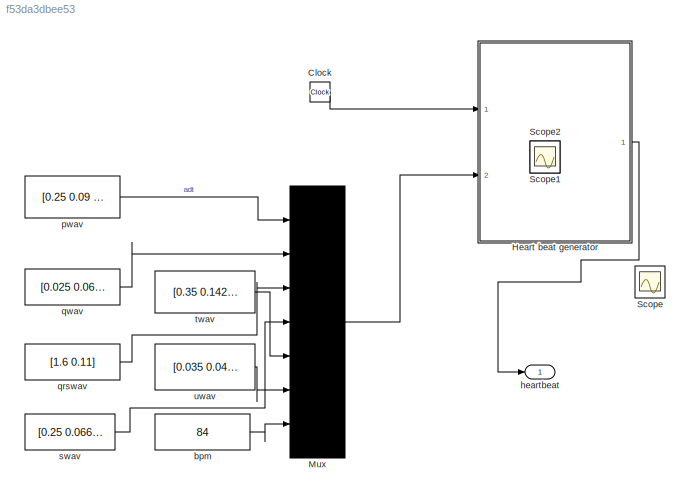
MODEL slx_f53da3dbee53
KIND model
CONFIG AbsTol = auto
CONFIG EnableMultiTasking = off
CONFIG FixedStep = auto
CONFIG MaxStep = 0.01
CONFIG MinStep = auto
CONFIG RelTol = 1e-3
CONFIG SampleTimeConstraint = Unconstrained
CONFIG Solver = VariableStepAuto
CONFIG SolverName = VariableStepAuto
CONFIG StartTime = 0.0
CONFIG StopTime = 10
BLOCK [Clock] Clock
  DisplayTime = on
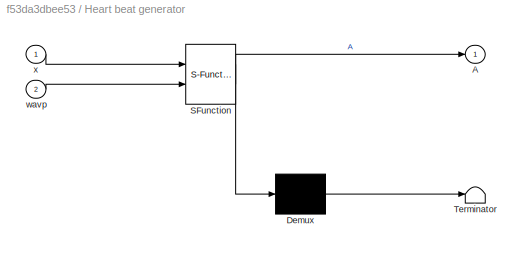
BLOCK [SubSystem] Heart beat generator
  ErrorFcn = Stateflow.Translate.translate
  PermitHierarchicalResolution = ExplicitOnly
  Ports = [2, 1]
  RequestExecContextInheritance = off
  SFBlockType = MATLAB Function
  TreatAsAtomicUnit = on
  Variant = off
BLOCK [Demux] Heart beat generator/ Demux 
  Outputs = 1
  Ports = [1, 1]
BLOCK [S-Function] Heart beat generator/ SFunction 
  EnableBusSupport = on
  FunctionName = sf_sfun
  PortCounts = [2 2]
  Ports = [2, 2]
  SFcnIsStateOwnerBlock = off
  SFunctionDeploymentMode = off
  Tag = Stateflow S-Function heart 2
BLOCK [Terminator] Heart beat generator/ Terminator 
BLOCK [Outport] Heart beat generator/A
  IconDisplay = Port number
BLOCK [Inport] Heart beat generator/wavp
  IconDisplay = Port number
  Port = 2
BLOCK [Inport] Heart beat generator/x
  IconDisplay = Port number
BLOCK [Mux] Mux
  DisplayOption = bar
  Inputs = 7
  Ports = [7, 1]
BLOCK [Scope] Scope
  Commented = on
  NumInputPorts = 1
  Ports = [1]
  ScopeSpecificationString = Simulink.scopes.TimeScopeBlockCfg('CurrentConfiguration', extmgr.ConfigurationSet(extmgr.Configuration('Core','General UI',true),extmgr.Configuration('Core','Source UI',true),extmgr.Configuration('Sources','WiredSimulink',true),extmgr.Configuration('Visuals','Time Domain',true,'SerializedDisplays',{struct('MinYLimReal','0.68741','MaxYLimReal','2.96774','YLabelReal','','MinYLimMag','0.68741','MaxYL...<+1487ch>
BLOCK [Scope] Scope1
  IOType = viewer
  NumInputPorts = 1
  Ports = []
  ScopeSpecificationString = Simulink.scopes.TimeScopeBlockCfg('CurrentConfiguration', extmgr.ConfigurationSet(extmgr.Configuration('Core','General UI',true),extmgr.Configuration('Core','Source UI',true),extmgr.Configuration('Sources','WiredSimulink',true,'DataLoggingVariableName','ScopeData1'),extmgr.Configuration('Visuals','Time Domain',true,'SerializedDisplays',{struct('MinYLimReal','-10.00000','MaxYLimReal','10.00000','YL...<+1420ch>
BLOCK [Scope] Scope2
  IOType = viewer
  NumInputPorts = 1
  Ports = []
  ScopeSpecificationString = Simulink.scopes.TimeScopeBlockCfg('CurrentConfiguration', extmgr.ConfigurationSet(extmgr.Configuration('Core','General UI',true),extmgr.Configuration('Core','Source UI',true),extmgr.Configuration('Sources','WiredSimulink',true,'DataLoggingVariableName','ScopeData2'),extmgr.Configuration('Visuals','Time Domain',true,'SerializedDisplays',{struct('MinYLimReal','-10.00000','MaxYLimReal','10.00000','YL...<+1420ch>
BLOCK [Constant] bpm
  Value = 84
BLOCK [Outport] heartbeat
  IconDisplay = Port number
BLOCK [Constant] pwav
  Value = [0.25 0.09 0.16]
BLOCK [Constant] qrswav
  Value = [1.6 0.11]
BLOCK [Constant] qwav
  Value = [0.025 0.066 0.166]
BLOCK [Constant] swav
  Value = [0.25 0.066 0.09]
BLOCK [Constant] twav
  Value = [0.35 0.142 0.2]
BLOCK [Constant] uwav
  Value = [0.035 0.0476 0.433]
LINE Clock:1 -> Heart beat generator:1
LINE Heart beat generator:1 -> heartbeat:1
LINE Mux:1 -> Heart beat generator:2
LINE bpm:1 -> Mux:7
LINE pwav:1 -> Mux:1
LINE qrswav:1 -> Mux:3
LINE qwav:1 -> Mux:2
LINE swav:1 -> Mux:4
LINE twav:1 -> Mux:5
LINE uwav:1 -> Mux:6
CHART Heart beat generator states=1 transitions=1
  STATE_LABEL 'eML_blk_kernel()'
  STATE_LABEL 'SCRIPT:\nfunction A = heartbeat(x,wavp)\n     li=30/wavp(18);  \n      \n      a_pwav=wavp(1);\n      d_pwav=wavp(2);\n      t_pwav=wavp(3);  \n     \n      a_qwav=wavp(4);\n      d_qwav=wavp(5);\n      t_qwav=wavp(6);\n      \n      a_qrswav=wavp(7);\n      d_qrswav=wavp(8);\n      \n      a_swav=wavp(9);\n      d_swav=wavp(10);\n      t_swav=wavp(11);\n      \n      a_twav=wavp(12);\n      d_twav=wavp(13);\n      t_...<+489ch>'
